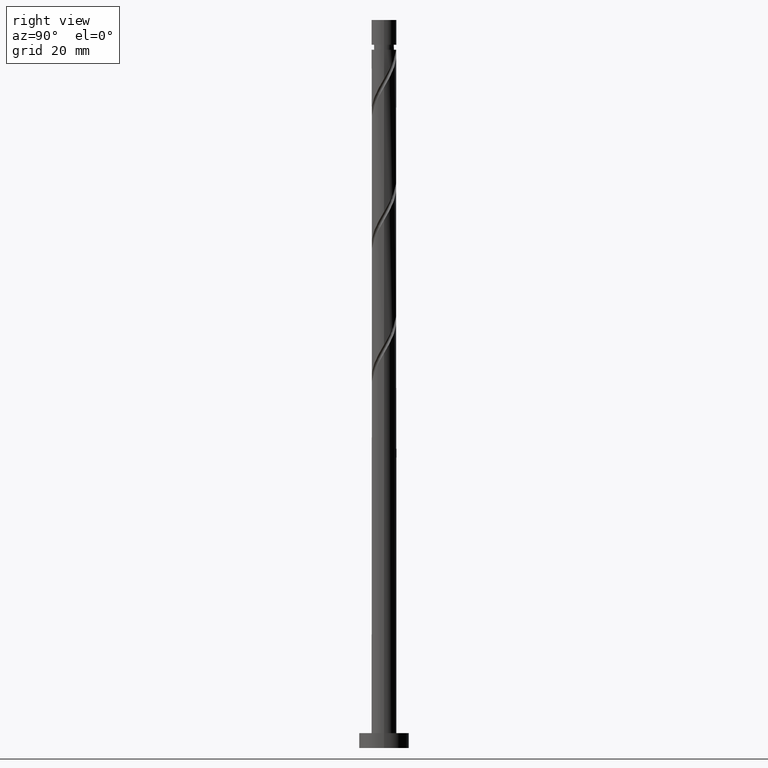
[diagram: clean part render]
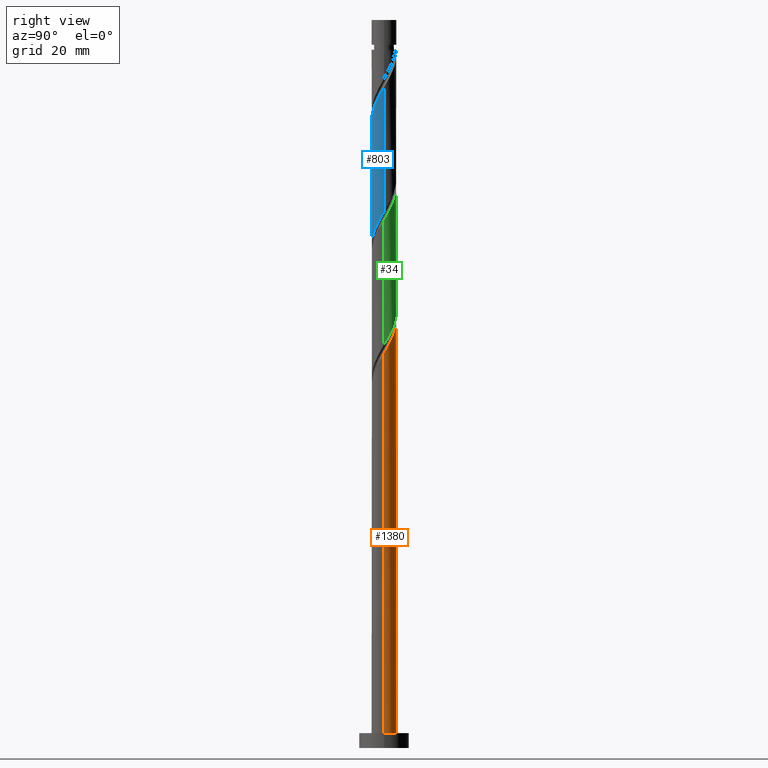
[diagram: same view with three faces highlighted in distinct colors, each labeled with its STEP entity id]
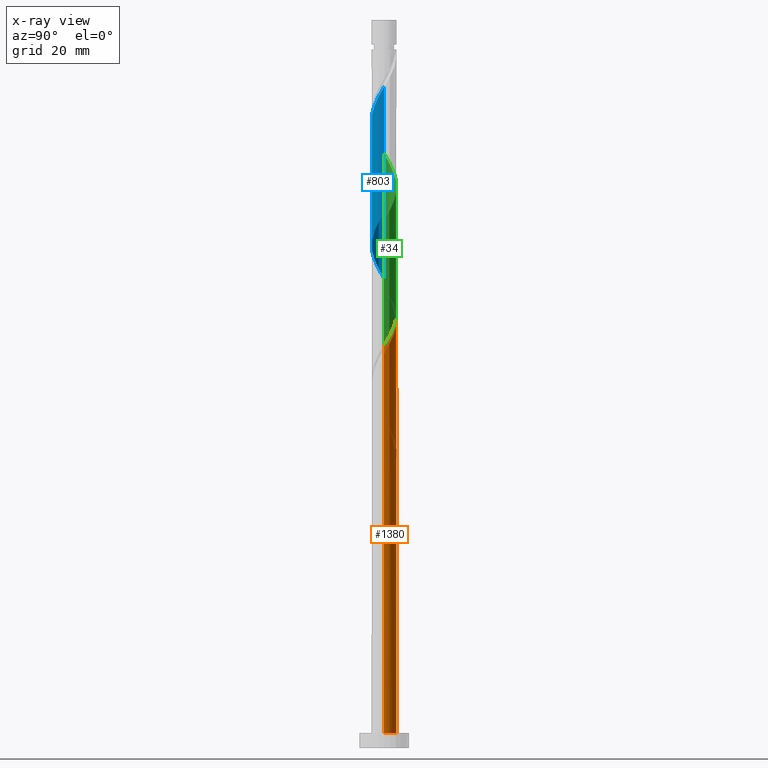
[diagram: x-ray of the same camera — body ghosted, the three highlighted faces saturated]
A machine part, right view with three faces highlighted in distinct colors.
The next image is the same camera in x-ray (body ghosted, the three faces saturated) — at least one of them is partly hidden behind the body in this view.
Their STEP definitions:

[orange] entity #1380 — the highlighted cylindrical surface (edge-blend (fillet) strip) has radius 2.5 mm, axis along (-0, -0, -1).
#2 = CARTESIAN_POINT ( 'NONE',  ( -1.485422444420511745, 2.042724014156701351, 88.50642134047635068 ) ) ;
#9 = CARTESIAN_POINT ( 'NONE',  ( -2.177375558832926217, 1.228428132125369387, 90.32460315865817790 ) ) ;
#22 = CARTESIAN_POINT ( 'NONE',  ( 2.500000000000000000, 3.061616997868383141E-16, 146.0000000000000000 ) ) ;
#29 = CARTESIAN_POINT ( 'NONE',  ( 2.354261794510398964, 0.8411013035946934835, 80.62763346168846113 ) ) ;
#45 = ORIENTED_EDGE ( 'NONE', *, *, #764, .F. ) ;
#47 = VERTEX_POINT ( 'NONE', #54 ) ;
#54 = CARTESIAN_POINT ( 'NONE',  ( -2.500000000000003109, -1.847167356881797397E-15, 92.50545170966032060 ) ) ;
#55 =( BOUNDED_CURVE ( )  B_SPLINE_CURVE ( 2, ( #1454, #302, #308, #806, #1319, #172, #1197, #1072, #1327, #180, #566 ),
 .UNSPECIFIED., .F., .T. ) 
 B_SPLINE_CURVE_WITH_KNOTS ( ( 3, 2, 2, 2, 2, 3 ),
 ( 0.000000000000000000, 0.01136363636363635354, 0.02272727272727270709, 0.03409090909090906063, 0.04545454545454541417, 0.05452521624175106496 ),
 .UNSPECIFIED. ) 
 CURVE ( )  GEOMETRIC_REPRESENTATION_ITEM ( )  RATIONAL_B_SPLINE_CURVE ( ( 0.9090909090909247148, 0.8998376744372269531, 0.9090909090909247148, 0.8998376744372269531, 0.9090909090909247148, 0.8998376744372269531, 0.9090909090909247148, 0.8998376744372269531, 0.9090909090909247148, 0.9017048011080046610, 0.9061101570135647876 ) ) 
 REPRESENTATION_ITEM ( '' )  );
#93 = VERTEX_POINT ( 'NONE', #1453 ) ;
#116 = CARTESIAN_POINT ( 'NONE',  ( -0.1452368982656253582, 2.521528798126814408, 86.08217891623395701 ) ) ;
#118 = CARTESIAN_POINT ( 'NONE',  ( -0.9060516544719204868, 2.330036566114082053, 62.44581527987031677 ) ) ;
#134 = CARTESIAN_POINT ( 'NONE',  ( -2.353996859965342914, 0.9153687888900193803, 90.93066376471880119 ) ) ;
#145 = CARTESIAN_POINT ( 'NONE',  ( -2.500000000000003553, 5.122711090947495874E-15, 65.83878504299364920 ) ) ;
#149 = VERTEX_POINT ( 'NONE', #578 ) ;
#152 = VECTOR ( 'NONE', #1575, 1000.000000000000000 ) ;
#153 = DIRECTION ( 'NONE',  ( 0.000000000000000000, 1.000000000000000000, -8.326672684688674053E-15 ) ) ;
#154 = CARTESIAN_POINT ( 'NONE',  ( -2.435264748179753358, 0.5652305779706360278, 91.53672437077941026 ) ) ;
#171 = VERTEX_POINT ( 'NONE', #729 ) ;
#172 = CARTESIAN_POINT ( 'NONE',  ( -2.000754257700509076, 1.541487475360719062, 63.05187588593093295 ) ) ;
#180 = CARTESIAN_POINT ( 'NONE',  ( -2.500000000000002220, 0.2863223184628149176, 65.35282509002233553 ) ) ;
#197 = CIRCLE ( 'NONE', #1378, 2.500000000000000000 ) ;
#200 = AXIS2_PLACEMENT_3D ( 'NONE', #1018, #1412, #1048 ) ;
#204 =( BOUNDED_CURVE ( )  B_SPLINE_CURVE ( 2, ( #1635, #454, #1476, #1487, #1355, #214, #1148, #1137, #893, #914, #118, #883, #621, #904, #271 ),
 .UNSPECIFIED., .F., .T. ) 
 B_SPLINE_CURVE_WITH_KNOTS ( ( 3, 2, 2, 2, 2, 2, 2, 3 ),
 ( 0.9295252162417512176, 0.9318181818181817677, 0.9431818181818182323, 0.9545454545454545858, 0.9659090909090909394, 0.9772727272727272929, 0.9886363636363636465, 1.000000000000000000 ),
 .UNSPECIFIED. ) 
 CURVE ( )  GEOMETRIC_REPRESENTATION_ITEM ( )  RATIONAL_B_SPLINE_CURVE ( ( 0.9061101570135593475, 0.9072237824201414558, 0.9090909090909189416, 0.8998376744372214020, 0.9090909090909189416, 0.8998376744372214020, 0.9090909090909189416, 0.8998376744372214020, 0.9090909090909189416, 0.8998376744372214020, 0.9090909090909189416, 0.8998376744372214020, 0.9090909090909189416, 0.8998376744372214020, 0.9090909090909189416 ) ) 
 REPRESENTATION_ITEM ( '' )  );
#214 = CARTESIAN_POINT ( 'NONE',  ( -2.233329684002603344, 1.179593048026943203, 65.47611831017333373 ) ) ;
#238 = CARTESIAN_POINT ( 'NONE',  ( 2.500000000000003109, 1.720034380902078682E-15, 79.17211837632699201 ) ) ;
#271 = CARTESIAN_POINT ( 'NONE',  ( 0.4974937185533112594, 2.450000000000000622, 60.02157285562788047 ) ) ;
#285 = VECTOR ( 'NONE', #1125, 1000.000000000000000 ) ;
#289 = LINE ( 'NONE', #22, #1662 ) ;
#302 = CARTESIAN_POINT ( 'NONE',  ( -0.8497505388409963833, 2.378471201873193497, 60.62763346168849665 ) ) ;
#308 = CARTESIAN_POINT ( 'NONE',  ( -1.167586491630753676, 2.210597608014947202, 61.23369406774909862 ) ) ;
#310 = ORIENTED_EDGE ( 'NONE', *, *, #812, .T. ) ;
#364 = VERTEX_POINT ( 'NONE', #238 ) ;
#403 = CARTESIAN_POINT ( 'NONE',  ( 1.241060336893710536, 2.199766004962788735, 83.65793649199150650 ) ) ;
#421 = EDGE_CURVE ( 'NONE', #929, #171, #204, .T. ) ;
#441 = VERTEX_POINT ( 'NONE', #145 ) ;
#446 = ORIENTED_EDGE ( 'NONE', *, *, #920, .F. ) ;
#454 = CARTESIAN_POINT ( 'NONE',  ( -2.500000000000001332, 0.07193881630955417661, 67.41559599687724358 ) ) ;
#473 = CARTESIAN_POINT ( 'NONE',  ( -2.500000000000000000, 0.000000000000000000, 146.0000000000000000 ) ) ;
#498 = CARTESIAN_POINT ( 'NONE',  ( 2.021932029057392999, 1.470302985738609403, 81.83975467380970770 ) ) ;
#516 = CARTESIAN_POINT ( 'NONE',  ( 0.5710429720501333239, 2.460307127265380256, 84.87005770411276728 ) ) ;
#526 = CARTESIAN_POINT ( 'NONE',  ( -1.743088351060509744, 1.792105744758709873, 89.11248194653697396 ) ) ;
#536 = CARTESIAN_POINT ( 'NONE',  ( 2.500000000000003553, 0.07193881630955606399, 79.29421638104520298 ) ) ;
#553 = CIRCLE ( 'NONE', #1488, 2.500000000000000000 ) ;
#557 = CARTESIAN_POINT ( 'NONE',  ( 0.000000000000000000, 0.000000000000000000, 3.000000000000000000 ) ) ;
#566 = CARTESIAN_POINT ( 'NONE',  ( -2.500000000000003553, 5.122711090947495874E-15, 65.83878504299364920 ) ) ;
#578 = CARTESIAN_POINT ( 'NONE',  ( -2.500000000000000000, 0.000000000000000000, 3.000000000000000000 ) ) ;
#584 = ORIENTED_EDGE ( 'NONE', *, *, #1274, .F. ) ;
#621 = CARTESIAN_POINT ( 'NONE',  ( -0.2129030368922530114, 2.490917962696094445, 61.23369406774913415 ) ) ;
#627 = CARTESIAN_POINT ( 'NONE',  ( 2.233329684002606896, 1.179593048026943425, 81.23369406774911283 ) ) ;
#645 = CARTESIAN_POINT ( 'NONE',  ( 2.475193905018191920, 0.5026095591624443193, 80.02157285562788047 ) ) ;
#650 = ORIENTED_EDGE ( 'NONE', *, *, #421, .F. ) ;
#652 = FACE_OUTER_BOUND ( 'NONE', #1436, .T. ) ;
#661 = CARTESIAN_POINT ( 'NONE',  ( -1.167586491630753676, 2.210597608014947202, 87.90036073441577003 ) ) ;
#681 = DIRECTION ( 'NONE',  ( 0.000000000000000000, 0.000000000000000000, 1.000000000000000000 ) ) ;
#729 = CARTESIAN_POINT ( 'NONE',  ( 0.4974937185533112594, 2.450000000000000622, 60.02157285562788047 ) ) ;
#764 = EDGE_CURVE ( 'NONE', #441, #149, #1382, .T. ) ;
#774 = CARTESIAN_POINT ( 'NONE',  ( -2.000754257700509076, 1.541487475360719062, 89.71854255259758304 ) ) ;
#785 = CARTESIAN_POINT ( 'NONE',  ( 0.2129030368922538996, 2.490917962696097110, 85.47611831017334794 ) ) ;
#806 = CARTESIAN_POINT ( 'NONE',  ( -1.485422444420511745, 2.042724014156701351, 61.83975467380970770 ) ) ;
#812 = EDGE_CURVE ( 'NONE', #93, #171, #553, .T. ) ;
#851 = ORIENTED_EDGE ( 'NONE', *, *, #1485, .T. ) ;
#883 = CARTESIAN_POINT ( 'NONE',  ( -0.5710429720501317696, 2.460307127265377591, 61.83975467380970770 ) ) ;
#893 = CARTESIAN_POINT ( 'NONE',  ( -1.525797355502942931, 1.980389464206530281, 63.65793649199151361 ) ) ;
#904 = CARTESIAN_POINT ( 'NONE',  ( 0.1452368982656258856, 2.521528798126810855, 60.62763346168850376 ) ) ;
#912 = CARTESIAN_POINT ( 'NONE',  ( -2.500000000000003997, 0.2863223184628085893, 92.01949175668903536 ) ) ;
#914 = CARTESIAN_POINT ( 'NONE',  ( -1.241060336893709870, 2.199766004962786070, 63.05187588593091874 ) ) ;
#920 = EDGE_CURVE ( 'NONE', #47, #929, #1058, .T. ) ;
#929 = VERTEX_POINT ( 'NONE', #1047 ) ;
#1018 = CARTESIAN_POINT ( 'NONE',  ( 0.000000000000000000, 0.000000000000000000, 146.0000000000000000 ) ) ;
#1028 = CARTESIAN_POINT ( 'NONE',  ( 0.000000000000000000, 0.000000000000000000, 60.02157285562789468 ) ) ;
#1047 = CARTESIAN_POINT ( 'NONE',  ( -2.500000000000000888, 2.512745878187399992E-15, 67.53769400159545455 ) ) ;
#1048 = DIRECTION ( 'NONE',  ( -1.000000000000000000, 0.000000000000000000, 0.000000000000000000 ) ) ;
#1058 = LINE ( 'NONE', #1164, #152 ) ;
#1061 =( BOUNDED_CURVE ( )  B_SPLINE_CURVE ( 2, ( #1559, #536, #1165, #645, #29, #627, #498, #1283, #1547, #403, #1276, #516, #785, #116, #1146, #1420, #661, #2, #526, #774, #9, #134, #154, #912, #1271 ),
 .UNSPECIFIED., .F., .T. ) 
 B_SPLINE_CURVE_WITH_KNOTS ( ( 3, 2, 2, 2, 2, 2, 2, 2, 2, 2, 2, 2, 3 ),
 ( 0.1795252162417513009, 0.1818181818181817677, 0.1931818181818182323, 0.2045454545454545858, 0.2159090909090909394, 0.2272727272727272929, 0.2386363636363636465, 0.2500000000000000000, 0.2613636363636363535, 0.2727272727272727071, 0.2840909090909090606, 0.2954545454545454142, 0.3045252162417512731 ),
 .UNSPECIFIED. ) 
 CURVE ( )  GEOMETRIC_REPRESENTATION_ITEM ( )  RATIONAL_B_SPLINE_CURVE ( ( 0.9061101570135650096, 0.9072237824201472289, 0.9090909090909247148, 0.8998376744372269531, 0.9090909090909247148, 0.8998376744372269531, 0.9090909090909247148, 0.8998376744372269531, 0.9090909090909247148, 0.8998376744372269531, 0.9090909090909247148, 0.8998376744372269531, 0.9090909090909247148, 0.8998376744372269531, 0.9090909090909247148, 0.8998376744372269531, 0.9090909090909247148, 0.8998376744372269531, 0.9090909090909247148, 0.8998376744372269531, 0.9090909090909247148, 0.8998376744372269531, 0.9090909090909247148, 0.9017048011080044390, 0.9061101570135650096 ) ) 
 REPRESENTATION_ITEM ( '' )  );
#1063 = DIRECTION ( 'NONE',  ( 1.000000000000000000, 0.000000000000000000, 0.000000000000000000 ) ) ;
#1065 = EDGE_CURVE ( 'NONE', #364, #1194, #289, .T. ) ;
#1072 = CARTESIAN_POINT ( 'NONE',  ( -2.353996859965342914, 0.9153687888900193803, 64.26399709805212979 ) ) ;
#1110 = ORIENTED_EDGE ( 'NONE', *, *, #1324, .F. ) ;
#1125 = DIRECTION ( 'NONE',  ( -0.000000000000000000, -0.000000000000000000, -1.000000000000000000 ) ) ;
#1137 = CARTESIAN_POINT ( 'NONE',  ( -1.810534374112176659, 1.761012923450275602, 64.26399709805212979 ) ) ;
#1146 = CARTESIAN_POINT ( 'NONE',  ( -0.4974937185533102046, 2.450000000000003286, 86.68823952229452345 ) ) ;
#1148 = CARTESIAN_POINT ( 'NONE',  ( -2.021932029057390334, 1.470302985738609181, 64.87005770411273886 ) ) ;
#1164 = CARTESIAN_POINT ( 'NONE',  ( -2.500000000000000000, 0.000000000000000000, 146.0000000000000000 ) ) ;
#1165 = CARTESIAN_POINT ( 'NONE',  ( 2.495863270706177417, 0.1437585960555957942, 79.41551224956725719 ) ) ;
#1184 = ORIENTED_EDGE ( 'NONE', *, *, #1065, .T. ) ;
#1194 = VERTEX_POINT ( 'NONE', #1220 ) ;
#1197 = CARTESIAN_POINT ( 'NONE',  ( -2.177375558832926217, 1.228428132125369387, 63.65793649199151361 ) ) ;
#1220 = CARTESIAN_POINT ( 'NONE',  ( 2.500000000000000000, 3.061616997868383141E-16, 3.000000000000000000 ) ) ;
#1271 = CARTESIAN_POINT ( 'NONE',  ( -2.500000000000003109, -1.847167356881797397E-15, 92.50545170966032060 ) ) ;
#1274 = EDGE_CURVE ( 'NONE', #93, #441, #55, .T. ) ;
#1276 = CARTESIAN_POINT ( 'NONE',  ( 0.9060516544719214860, 2.330036566114083829, 84.26399709805211558 ) ) ;
#1283 = CARTESIAN_POINT ( 'NONE',  ( 1.810534374112180878, 1.761012923450276269, 82.44581527987030256 ) ) ;
#1292 = DIRECTION ( 'NONE',  ( -4.622231866529366047E-30, -6.938893903907233111E-15, -1.000000000000000000 ) ) ;
#1319 = CARTESIAN_POINT ( 'NONE',  ( -1.743088351060509744, 1.792105744758709873, 62.44581527987028835 ) ) ;
#1324 = EDGE_CURVE ( 'NONE', #364, #47, #1061, .T. ) ;
#1327 = CARTESIAN_POINT ( 'NONE',  ( -2.435264748179753358, 0.5652305779706360278, 64.87005770411272465 ) ) ;
#1355 = CARTESIAN_POINT ( 'NONE',  ( -2.354261794510395855, 0.8411013035946934835, 66.08217891623395701 ) ) ;
#1378 = AXIS2_PLACEMENT_3D ( 'NONE', #557, #681, #1063 ) ;
#1380 = ADVANCED_FACE ( 'NONE', ( #652 ), #1531, .T. ) ;
#1382 = LINE ( 'NONE', #473, #285 ) ;
#1412 = DIRECTION ( 'NONE',  ( -0.000000000000000000, -0.000000000000000000, -1.000000000000000000 ) ) ;
#1420 = CARTESIAN_POINT ( 'NONE',  ( -0.8497505388409963833, 2.378471201873193497, 87.29430012835516095 ) ) ;
#1436 = EDGE_LOOP ( 'NONE', ( #1110, #1184, #851, #45, #584, #310, #650, #446 ) ) ;
#1453 = CARTESIAN_POINT ( 'NONE',  ( -0.4974937185533102602, 2.450000000000003286, 60.02157285562788047 ) ) ;
#1454 = CARTESIAN_POINT ( 'NONE',  ( -0.4974937185533102046, 2.450000000000003286, 60.02157285562788047 ) ) ;
#1476 = CARTESIAN_POINT ( 'NONE',  ( -2.495863270706176085, 0.1437585960555965436, 67.29430012835517516 ) ) ;
#1485 = EDGE_CURVE ( 'NONE', #1194, #149, #197, .T. ) ;
#1487 = CARTESIAN_POINT ( 'NONE',  ( -2.475193905018188367, 0.5026095591624445413, 66.68823952229455188 ) ) ;
#1488 = AXIS2_PLACEMENT_3D ( 'NONE', #1028, #1292, #153 ) ;
#1531 = CYLINDRICAL_SURFACE ( 'NONE', #200, 2.500000000000000000 ) ;
#1547 = CARTESIAN_POINT ( 'NONE',  ( 1.525797355502944708, 1.980389464206532946, 83.05187588593088321 ) ) ;
#1559 = CARTESIAN_POINT ( 'NONE',  ( 2.500000000000003109, 1.720034380902078682E-15, 79.17211837632699201 ) ) ;
#1570 = DIRECTION ( 'NONE',  ( -0.000000000000000000, -0.000000000000000000, -1.000000000000000000 ) ) ;
#1575 = DIRECTION ( 'NONE',  ( -0.000000000000000000, -0.000000000000000000, -1.000000000000000000 ) ) ;
#1635 = CARTESIAN_POINT ( 'NONE',  ( -2.500000000000000888, 2.512745878187399992E-15, 67.53769400159545455 ) ) ;
#1662 = VECTOR ( 'NONE', #1570, 1000.000000000000000 ) ;

[blue] entity #803 — the highlighted cylindrical surface (edge-blend (fillet) strip) has radius 2.5 mm, axis along (-0, -0, -1).
#4 = CARTESIAN_POINT ( 'NONE',  ( 2.500000000000000000, 3.061616997868383141E-16, 146.0000000000000000 ) ) ;
#69 = CARTESIAN_POINT ( 'NONE',  ( -0.5710429720501331019, -2.460307127265380256, 124.8700577041127247 ) ) ;
#95 = CARTESIAN_POINT ( 'NONE',  ( -2.354261794510398964, -0.8411013035946938166, 120.6276334616884753 ) ) ;
#101 = VECTOR ( 'NONE', #507, 1000.000000000000000 ) ;
#105 = CARTESIAN_POINT ( 'NONE',  ( -1.743088351060509078, -1.792105744758706987, 97.59733043138548680 ) ) ;
#130 = ORIENTED_EDGE ( 'NONE', *, *, #547, .T. ) ;
#142 = CARTESIAN_POINT ( 'NONE',  ( -2.500000000000003109, -1.847167356881797397E-15, 119.1721183763269778 ) ) ;
#160 = CARTESIAN_POINT ( 'NONE',  ( 0.000000000000000000, 0.000000000000000000, 146.0000000000000000 ) ) ;
#168 = EDGE_CURVE ( 'NONE', #1326, #1614, #665, .T. ) ;
#219 = CARTESIAN_POINT ( 'NONE',  ( -1.241060336893712091, -2.199766004962788735, 123.6579364919915207 ) ) ;
#221 = CARTESIAN_POINT ( 'NONE',  ( -2.435264748179752026, -0.5652305779706344735, 95.17308800714305050 ) ) ;
#228 = CARTESIAN_POINT ( 'NONE',  ( -2.021932029057392555, -1.470302985738610513, 121.8397546738096651 ) ) ;
#278 = FACE_OUTER_BOUND ( 'NONE', #747, .T. ) ;
#281 = CARTESIAN_POINT ( 'NONE',  ( 2.500000000000000888, -2.991364140699285949E-15, 107.5376940015954546 ) ) ;
#329 = CARTESIAN_POINT ( 'NONE',  ( 2.500000000000000888, -2.991364140699285554E-15, 107.5376940015954546 ) ) ;
#339 = CARTESIAN_POINT ( 'NONE',  ( -2.233329684002606452, -1.179593048026943869, 121.2336940677490844 ) ) ;
#340 = DIRECTION ( 'NONE',  ( -0.000000000000000000, -0.000000000000000000, -1.000000000000000000 ) ) ;
#341 = CARTESIAN_POINT ( 'NONE',  ( 2.354261794510395855, -0.8411013035946937055, 106.0821789162339712 ) ) ;
#347 = CARTESIAN_POINT ( 'NONE',  ( -2.500000000000003109, -1.847167356881797397E-15, 119.1721183763269920 ) ) ;
#350 = CARTESIAN_POINT ( 'NONE',  ( 2.500000000000003109, 1.720034380902078682E-15, 132.5054517096603206 ) ) ;
#356 = CARTESIAN_POINT ( 'NONE',  ( 2.500000000000001776, -0.2863223184628163054, 132.0194917566890354 ) ) ;
#366 = CARTESIAN_POINT ( 'NONE',  ( 1.525797355502942709, -1.980389464206530281, 103.6579364919915207 ) ) ;
#398 = ORIENTED_EDGE ( 'NONE', *, *, #478, .F. ) ;
#471 = CARTESIAN_POINT ( 'NONE',  ( -1.810534374112179767, -1.761012923450277379, 122.4458152798702884 ) ) ;
#478 = EDGE_CURVE ( 'NONE', #1614, #1059, #519, .T. ) ;
#482 = CARTESIAN_POINT ( 'NONE',  ( 2.435264748179753358, -0.5652305779706359168, 131.5367243707793818 ) ) ;
#497 = CARTESIAN_POINT ( 'NONE',  ( 0.5710429720501322137, -2.460307127265377591, 101.8397546738097077 ) ) ;
#504 = CARTESIAN_POINT ( 'NONE',  ( -0.8497505388409951621, -2.378471201873189944, 99.41551224956727140 ) ) ;
#507 = DIRECTION ( 'NONE',  ( -0.000000000000000000, -0.000000000000000000, -1.000000000000000000 ) ) ;
#515 = DIRECTION ( 'NONE',  ( -0.000000000000000000, -0.000000000000000000, -1.000000000000000000 ) ) ;
#519 = LINE ( 'NONE', #4, #101 ) ;
#547 = EDGE_CURVE ( 'NONE', #1326, #1209, #731, .T. ) ;
#569 = CARTESIAN_POINT ( 'NONE',  ( 2.500000000000003109, 1.720034380902078682E-15, 132.5054517096603206 ) ) ;
#588 = CARTESIAN_POINT ( 'NONE',  ( 2.353996859965342914, -0.9153687888900188252, 130.9306637647187870 ) ) ;
#597 = CARTESIAN_POINT ( 'NONE',  ( 0.8497505388409957172, -2.378471201873193941, 127.2943001283551610 ) ) ;
#606 = CARTESIAN_POINT ( 'NONE',  ( -1.525797355502945374, -1.980389464206532946, 123.0518758859308974 ) ) ;
#660 = DIRECTION ( 'NONE',  ( -1.000000000000000000, 0.000000000000000000, 0.000000000000000000 ) ) ;
#665 =( BOUNDED_CURVE ( )  B_SPLINE_CURVE ( 2, ( #347, #1379, #1236, #1210, #95, #339, #228, #471, #606, #219, #1639, #69, #981, #852, #735, #597, #1509, #1218, #971, #1628, #1228, #588, #482, #356, #569 ),
 .UNSPECIFIED., .F., .T. ) 
 B_SPLINE_CURVE_WITH_KNOTS ( ( 3, 2, 2, 2, 2, 2, 2, 2, 2, 2, 2, 2, 3 ),
 ( 0.5545252162417513286, 0.5568181818181818787, 0.5681818181818181213, 0.5795454545454545858, 0.5909090909090908283, 0.6022727272727272929, 0.6136363636363636465, 0.6250000000000000000, 0.6363636363636363535, 0.6477272727272727071, 0.6590909090909091717, 0.6704545454545454142, 0.6795252162417511066 ),
 .UNSPECIFIED. ) 
 CURVE ( )  GEOMETRIC_REPRESENTATION_ITEM ( )  RATIONAL_B_SPLINE_CURVE ( ( 0.9061101570135650096, 0.9072237824201471179, 0.9090909090909247148, 0.8998376744372269531, 0.9090909090909247148, 0.8998376744372269531, 0.9090909090909247148, 0.8998376744372269531, 0.9090909090909247148, 0.8998376744372269531, 0.9090909090909247148, 0.8998376744372269531, 0.9090909090909247148, 0.8998376744372269531, 0.9090909090909247148, 0.8998376744372269531, 0.9090909090909247148, 0.8998376744372269531, 0.9090909090909247148, 0.8998376744372269531, 0.9090909090909247148, 0.8998376744372269531, 0.9090909090909247148, 0.9017048011080046610, 0.9061101570135647876 ) ) 
 REPRESENTATION_ITEM ( '' )  );
#673 = ORIENTED_EDGE ( 'NONE', *, *, #677, .F. ) ;
#677 = EDGE_CURVE ( 'NONE', #1059, #1209, #1525, .T. ) ;
#731 = LINE ( 'NONE', #1102, #1376 ) ;
#735 = CARTESIAN_POINT ( 'NONE',  ( 0.4974937185533105932, -2.450000000000003286, 126.6882395222945235 ) ) ;
#738 = CARTESIAN_POINT ( 'NONE',  ( 1.810534374112177769, -1.761012923450275158, 104.2639970980521156 ) ) ;
#744 = CARTESIAN_POINT ( 'NONE',  ( -2.500000000000000888, -0.2863223184628057028, 94.69032062123341120 ) ) ;
#747 = EDGE_LOOP ( 'NONE', ( #398, #1408, #130, #673 ) ) ;
#784 = CYLINDRICAL_SURFACE ( 'NONE', #1267, 2.500000000000000000 ) ;
#803 = ADVANCED_FACE ( 'NONE', ( #278 ), #784, .T. ) ;
#852 = CARTESIAN_POINT ( 'NONE',  ( 0.1452368982656256635, -2.521528798126814408, 126.0821789162339428 ) ) ;
#854 = CARTESIAN_POINT ( 'NONE',  ( 1.241060336893708982, -2.199766004962786070, 103.0518758859309258 ) ) ;
#862 = CARTESIAN_POINT ( 'NONE',  ( -2.177375558832923996, -1.228428132125367167, 96.38520921926422602 ) ) ;
#880 = CARTESIAN_POINT ( 'NONE',  ( -2.000754257700506855, -1.541487475360715953, 96.99126982532484931 ) ) ;
#890 = CARTESIAN_POINT ( 'NONE',  ( 2.233329684002603344, -1.179593048026942981, 105.4761183101733479 ) ) ;
#971 = CARTESIAN_POINT ( 'NONE',  ( 1.743088351060509744, -1.792105744758709873, 129.1124819465369455 ) ) ;
#981 = CARTESIAN_POINT ( 'NONE',  ( -0.2129030368922535943, -2.490917962696097110, 125.4761183101733053 ) ) ;
#1000 = CARTESIAN_POINT ( 'NONE',  ( -1.485422444420510191, -2.042724014156698686, 98.20339103744608167 ) ) ;
#1005 = CARTESIAN_POINT ( 'NONE',  ( -2.353996859965340249, -0.9153687888900176040, 95.77914861320364537 ) ) ;
#1059 = VERTEX_POINT ( 'NONE', #281 ) ;
#1102 = CARTESIAN_POINT ( 'NONE',  ( -2.500000000000000000, 0.000000000000000000, 146.0000000000000000 ) ) ;
#1209 = VERTEX_POINT ( 'NONE', #1229 ) ;
#1210 = CARTESIAN_POINT ( 'NONE',  ( -2.475193905018191920, -0.5026095591624446524, 120.0215728556278663 ) ) ;
#1218 = CARTESIAN_POINT ( 'NONE',  ( 1.485422444420511967, -2.042724014156701351, 128.5064213404763507 ) ) ;
#1228 = CARTESIAN_POINT ( 'NONE',  ( 2.177375558832926217, -1.228428132125369387, 130.3246031586581921 ) ) ;
#1229 = CARTESIAN_POINT ( 'NONE',  ( -2.500000000000000888, 2.512745878187399992E-15, 94.20436066826212596 ) ) ;
#1236 = CARTESIAN_POINT ( 'NONE',  ( -2.495863270706177417, -0.1437585960555960440, 119.4155122495672430 ) ) ;
#1248 = CARTESIAN_POINT ( 'NONE',  ( 0.2129030368922523175, -2.490917962696094445, 101.2336940677491128 ) ) ;
#1262 = CARTESIAN_POINT ( 'NONE',  ( -2.500000000000000888, 2.512745878187399992E-15, 94.20436066826212596 ) ) ;
#1267 = AXIS2_PLACEMENT_3D ( 'NONE', #160, #515, #660 ) ;
#1326 = VERTEX_POINT ( 'NONE', #142 ) ;
#1362 = CARTESIAN_POINT ( 'NONE',  ( -1.167586491630752787, -2.210597608014944537, 98.80945164350669074 ) ) ;
#1370 = CARTESIAN_POINT ( 'NONE',  ( -0.4974937185533109818, -2.450000000000000622, 100.0215728556278805 ) ) ;
#1376 = VECTOR ( 'NONE', #340, 1000.000000000000000 ) ;
#1379 = CARTESIAN_POINT ( 'NONE',  ( -2.500000000000003997, -0.07193881630955435702, 119.2942163810452030 ) ) ;
#1400 = CARTESIAN_POINT ( 'NONE',  ( 0.9060516544719204868, -2.330036566114082053, 102.4458152798703594 ) ) ;
#1408 = ORIENTED_EDGE ( 'NONE', *, *, #168, .F. ) ;
#1496 = CARTESIAN_POINT ( 'NONE',  ( -0.1452368982656264962, -2.521528798126811299, 100.6276334616885038 ) ) ;
#1509 = CARTESIAN_POINT ( 'NONE',  ( 1.167586491630753232, -2.210597608014947202, 127.9003607344157700 ) ) ;
#1520 = CARTESIAN_POINT ( 'NONE',  ( 2.475193905018188367, -0.5026095591624448744, 106.6882395222945661 ) ) ;
#1525 =( BOUNDED_CURVE ( )  B_SPLINE_CURVE ( 2, ( #329, #1530, #1648, #1520, #341, #890, #1654, #738, #366, #854, #1400, #497, #1248, #1496, #1370, #504, #1362, #1000, #105, #880, #862, #1005, #221, #744, #1262 ),
 .UNSPECIFIED., .F., .T. ) 
 B_SPLINE_CURVE_WITH_KNOTS ( ( 3, 2, 2, 2, 2, 2, 2, 2, 2, 2, 2, 2, 3 ),
 ( 0.5545252162417513286, 0.5568181818181817677, 0.5681818181818182323, 0.5795454545454545858, 0.5909090909090909394, 0.6022727272727272929, 0.6136363636363636465, 0.6250000000000000000, 0.6363636363636363535, 0.6477272727272727071, 0.6590909090909090606, 0.6704545454545454142, 0.6795252162417513286 ),
 .UNSPECIFIED. ) 
 CURVE ( )  GEOMETRIC_REPRESENTATION_ITEM ( )  RATIONAL_B_SPLINE_CURVE ( ( 0.9061101570135594585, 0.9072237824201414558, 0.9090909090909189416, 0.8998376744372214020, 0.9090909090909189416, 0.8998376744372214020, 0.9090909090909189416, 0.8998376744372214020, 0.9090909090909189416, 0.8998376744372214020, 0.9090909090909189416, 0.8998376744372214020, 0.9090909090909189416, 0.8998376744372214020, 0.9090909090909189416, 0.8998376744372214020, 0.9090909090909189416, 0.8998376744372214020, 0.9090909090909189416, 0.8998376744372214020, 0.9090909090909189416, 0.8998376744372214020, 0.9090909090909189416, 0.9017048011079988878, 0.9061101570135594585 ) ) 
 REPRESENTATION_ITEM ( '' )  );
#1530 = CARTESIAN_POINT ( 'NONE',  ( 2.500000000000001332, -0.07193881630955810402, 107.4155959968772436 ) ) ;
#1614 = VERTEX_POINT ( 'NONE', #350 ) ;
#1628 = CARTESIAN_POINT ( 'NONE',  ( 2.000754257700508632, -1.541487475360719062, 129.7185425525975688 ) ) ;
#1639 = CARTESIAN_POINT ( 'NONE',  ( -0.9060516544719222631, -2.330036566114083385, 124.2639970980521156 ) ) ;
#1648 = CARTESIAN_POINT ( 'NONE',  ( 2.495863270706176085, -0.1437585960555968490, 107.2943001283551752 ) ) ;
#1654 = CARTESIAN_POINT ( 'NONE',  ( 2.021932029057390334, -1.470302985738609403, 104.8700577041127389 ) ) ;

[green] entity #34 — the highlighted cylindrical surface (edge-blend (fillet) strip) has radius 2.5 mm, axis along (-0, -0, -1).
#20 = CARTESIAN_POINT ( 'NONE',  ( 2.354261794510398964, 0.8411013035946934835, 107.2943001283551183 ) ) ;
#34 = ADVANCED_FACE ( 'NONE', ( #420 ), #935, .T. ) ;
#142 = CARTESIAN_POINT ( 'NONE',  ( -2.500000000000003109, -1.847167356881797397E-15, 119.1721183763269778 ) ) ;
#173 = CARTESIAN_POINT ( 'NONE',  ( 1.743088351060508190, 1.792105744758707875, 84.26399709805214400 ) ) ;
#178 = CARTESIAN_POINT ( 'NONE',  ( -2.353996859965342914, 0.9153687888900193803, 117.5973304313854584 ) ) ;
#184 = CARTESIAN_POINT ( 'NONE',  ( -1.241060336893709870, 2.199766004962786070, 89.71854255259761146 ) ) ;
#187 = CARTESIAN_POINT ( 'NONE',  ( 2.500000000000003109, 1.720034380902078682E-15, 105.8387850429936776 ) ) ;
#190 = CARTESIAN_POINT ( 'NONE',  ( 2.000754257700505967, 1.541487475360716841, 83.65793649199153492 ) ) ;
#224 = CARTESIAN_POINT ( 'NONE',  ( 2.500000000000000888, 0.2863223184628083673, 81.35698728790008261 ) ) ;
#279 = CARTESIAN_POINT ( 'NONE',  ( 2.500000000000003109, 1.720034380902078682E-15, 105.8387850429936776 ) ) ;
#288 = VERTEX_POINT ( 'NONE', #318 ) ;
#298 = EDGE_CURVE ( 'NONE', #1209, #288, #791, .T. ) ;
#300 = CARTESIAN_POINT ( 'NONE',  ( -2.021932029057390334, 1.470302985738609181, 91.53672437077941026 ) ) ;
#318 = CARTESIAN_POINT ( 'NONE',  ( 2.500000000000000888, -2.991364140699285949E-15, 80.87102733492878315 ) ) ;
#340 = DIRECTION ( 'NONE',  ( -0.000000000000000000, -0.000000000000000000, -1.000000000000000000 ) ) ;
#367 = CARTESIAN_POINT ( 'NONE',  ( 0.5710429720501333239, 2.460307127265380256, 111.5367243707793818 ) ) ;
#384 = CARTESIAN_POINT ( 'NONE',  ( -0.4974937185533102046, 2.450000000000003286, 113.3549061889611949 ) ) ;
#420 = FACE_OUTER_BOUND ( 'NONE', #616, .T. ) ;
#425 = CARTESIAN_POINT ( 'NONE',  ( -2.233329684002603344, 1.179593048026943203, 92.14278497684003355 ) ) ;
#463 = CARTESIAN_POINT ( 'NONE',  ( 2.353996859965340693, 0.9153687888900163827, 82.44581527987028835 ) ) ;
#511 = ORIENTED_EDGE ( 'NONE', *, *, #988, .T. ) ;
#544 = CARTESIAN_POINT ( 'NONE',  ( -2.000754257700509076, 1.541487475360719062, 116.3852092192642402 ) ) ;
#547 = EDGE_CURVE ( 'NONE', #1326, #1209, #731, .T. ) ;
#560 = CARTESIAN_POINT ( 'NONE',  ( -1.743088351060509744, 1.792105744758709873, 115.7791486132036454 ) ) ;
#572 = CARTESIAN_POINT ( 'NONE',  ( 0.4974937185533113704, 2.450000000000000622, 86.68823952229458030 ) ) ;
#576 = VERTEX_POINT ( 'NONE', #187 ) ;
#616 = EDGE_LOOP ( 'NONE', ( #1189, #511, #1071, #805 ) ) ;
#637 = CARTESIAN_POINT ( 'NONE',  ( 1.810534374112180878, 1.761012923450276269, 109.1124819465369598 ) ) ;
#672 = CARTESIAN_POINT ( 'NONE',  ( -2.435264748179753358, 0.5652305779706360278, 118.2033910374460675 ) ) ;
#700 = CARTESIAN_POINT ( 'NONE',  ( -1.485422444420511745, 2.042724014156701351, 115.1730880071430221 ) ) ;
#731 = LINE ( 'NONE', #1102, #1376 ) ;
#757 = CARTESIAN_POINT ( 'NONE',  ( 2.495863270706177417, 0.1437585960555957942, 106.0821789162339428 ) ) ;
#791 =( BOUNDED_CURVE ( )  B_SPLINE_CURVE ( 2, ( #830, #1618, #842, #1004, #1598, #425, #300, #1459, #819, #184, #954, #1463, #1456, #796, #572, #1588, #1199, #944, #173, #190, #1622, #463, #1001, #224, #1384 ),
 .UNSPECIFIED., .F., .T. ) 
 B_SPLINE_CURVE_WITH_KNOTS ( ( 3, 2, 2, 2, 2, 2, 2, 2, 2, 2, 2, 2, 3 ),
 ( 0.6795252162417513286, 0.6818181818181817677, 0.6931818181818182323, 0.7045454545454545858, 0.7159090909090909394, 0.7272727272727272929, 0.7386363636363636465, 0.7500000000000000000, 0.7613636363636363535, 0.7727272727272727071, 0.7840909090909090606, 0.7954545454545454142, 0.8045252162417512176 ),
 .UNSPECIFIED. ) 
 CURVE ( )  GEOMETRIC_REPRESENTATION_ITEM ( )  RATIONAL_B_SPLINE_CURVE ( ( 0.9061101570135594585, 0.9072237824201414558, 0.9090909090909189416, 0.8998376744372214020, 0.9090909090909189416, 0.8998376744372214020, 0.9090909090909189416, 0.8998376744372214020, 0.9090909090909189416, 0.8998376744372214020, 0.9090909090909189416, 0.8998376744372214020, 0.9090909090909189416, 0.8998376744372214020, 0.9090909090909189416, 0.8998376744372214020, 0.9090909090909189416, 0.8998376744372214020, 0.9090909090909189416, 0.8998376744372214020, 0.9090909090909189416, 0.8998376744372214020, 0.9090909090909189416, 0.9017048011079989989, 0.9061101570135593475 ) ) 
 REPRESENTATION_ITEM ( '' )  );
#796 = CARTESIAN_POINT ( 'NONE',  ( 0.1452368982656258856, 2.521528798126810855, 87.29430012835513253 ) ) ;
#800 = DIRECTION ( 'NONE',  ( -0.000000000000000000, -0.000000000000000000, -1.000000000000000000 ) ) ;
#805 = ORIENTED_EDGE ( 'NONE', *, *, #547, .F. ) ;
#819 = CARTESIAN_POINT ( 'NONE',  ( -1.525797355502942931, 1.980389464206530281, 90.32460315865822054 ) ) ;
#830 = CARTESIAN_POINT ( 'NONE',  ( -2.500000000000000888, 2.512745878187399992E-15, 94.20436066826212596 ) ) ;
#842 = CARTESIAN_POINT ( 'NONE',  ( -2.495863270706176085, 0.1437585960555965436, 93.96096679502186078 ) ) ;
#881 = CARTESIAN_POINT ( 'NONE',  ( 0.2129030368922538996, 2.490917962696097110, 112.1427849768399909 ) ) ;
#891 = CARTESIAN_POINT ( 'NONE',  ( -0.1452368982656253582, 2.521528798126814408, 112.7488455829005858 ) ) ;
#907 =( BOUNDED_CURVE ( )  B_SPLINE_CURVE ( 2, ( #279, #1156, #757, #1293, #20, #1175, #1007, #637, #1521, #1029, #1036, #367, #881, #891, #384, #1390, #1401, #700, #560, #544, #1070, #178, #672, #1601, #1183 ),
 .UNSPECIFIED., .F., .T. ) 
 B_SPLINE_CURVE_WITH_KNOTS ( ( 3, 2, 2, 2, 2, 2, 2, 2, 2, 2, 2, 2, 3 ),
 ( 0.4295252162417511621, 0.4318181818181817677, 0.4431818181818182323, 0.4545454545454545858, 0.4659090909090909394, 0.4772727272727272929, 0.4886363636363636465, 0.5000000000000000000, 0.5113636363636363535, 0.5227272727272727071, 0.5340909090909091717, 0.5454545454545454142, 0.5545252162417513286 ),
 .UNSPECIFIED. ) 
 CURVE ( )  GEOMETRIC_REPRESENTATION_ITEM ( )  RATIONAL_B_SPLINE_CURVE ( ( 0.9061101570135648986, 0.9072237824201471179, 0.9090909090909247148, 0.8998376744372269531, 0.9090909090909247148, 0.8998376744372269531, 0.9090909090909247148, 0.8998376744372269531, 0.9090909090909247148, 0.8998376744372269531, 0.9090909090909247148, 0.8998376744372269531, 0.9090909090909247148, 0.8998376744372269531, 0.9090909090909247148, 0.8998376744372269531, 0.9090909090909247148, 0.8998376744372269531, 0.9090909090909247148, 0.8998376744372269531, 0.9090909090909247148, 0.8998376744372269531, 0.9090909090909247148, 0.9017048011080045500, 0.9061101570135650096 ) ) 
 REPRESENTATION_ITEM ( '' )  );
#935 = CYLINDRICAL_SURFACE ( 'NONE', #1162, 2.500000000000000000 ) ;
#944 = CARTESIAN_POINT ( 'NONE',  ( 1.485422444420510191, 2.042724014156698686, 84.87005770411272465 ) ) ;
#954 = CARTESIAN_POINT ( 'NONE',  ( -0.9060516544719204868, 2.330036566114082053, 89.11248194653701660 ) ) ;
#988 = EDGE_CURVE ( 'NONE', #576, #288, #1053, .T. ) ;
#1001 = CARTESIAN_POINT ( 'NONE',  ( 2.435264748179752026, 0.5652305779706336963, 81.83975467380970770 ) ) ;
#1004 = CARTESIAN_POINT ( 'NONE',  ( -2.475193905018188367, 0.5026095591624445413, 93.35490618896122328 ) ) ;
#1007 = CARTESIAN_POINT ( 'NONE',  ( 2.021932029057392999, 1.470302985738609403, 108.5064213404763507 ) ) ;
#1029 = CARTESIAN_POINT ( 'NONE',  ( 1.241060336893710536, 2.199766004962788735, 110.3246031586581921 ) ) ;
#1036 = CARTESIAN_POINT ( 'NONE',  ( 0.9060516544719214860, 2.330036566114083829, 110.9306637647187870 ) ) ;
#1053 = LINE ( 'NONE', #1558, #1132 ) ;
#1070 = CARTESIAN_POINT ( 'NONE',  ( -2.177375558832926217, 1.228428132125369387, 116.9912698253248493 ) ) ;
#1071 = ORIENTED_EDGE ( 'NONE', *, *, #298, .F. ) ;
#1102 = CARTESIAN_POINT ( 'NONE',  ( -2.500000000000000000, 0.000000000000000000, 146.0000000000000000 ) ) ;
#1132 = VECTOR ( 'NONE', #1435, 1000.000000000000000 ) ;
#1156 = CARTESIAN_POINT ( 'NONE',  ( 2.500000000000003997, 0.07193881630955172024, 105.9608830477118886 ) ) ;
#1162 = AXIS2_PLACEMENT_3D ( 'NONE', #1442, #800, #1311 ) ;
#1175 = CARTESIAN_POINT ( 'NONE',  ( 2.233329684002606896, 1.179593048026943425, 107.9003607344157558 ) ) ;
#1183 = CARTESIAN_POINT ( 'NONE',  ( -2.500000000000003109, -1.847167356881797397E-15, 119.1721183763269920 ) ) ;
#1189 = ORIENTED_EDGE ( 'NONE', *, *, #1392, .F. ) ;
#1199 = CARTESIAN_POINT ( 'NONE',  ( 1.167586491630753454, 2.210597608014944537, 85.47611831017336215 ) ) ;
#1209 = VERTEX_POINT ( 'NONE', #1229 ) ;
#1229 = CARTESIAN_POINT ( 'NONE',  ( -2.500000000000000888, 2.512745878187399992E-15, 94.20436066826212596 ) ) ;
#1293 = CARTESIAN_POINT ( 'NONE',  ( 2.475193905018191920, 0.5026095591624443193, 106.6882395222945661 ) ) ;
#1311 = DIRECTION ( 'NONE',  ( -1.000000000000000000, 0.000000000000000000, 0.000000000000000000 ) ) ;
#1326 = VERTEX_POINT ( 'NONE', #142 ) ;
#1376 = VECTOR ( 'NONE', #340, 1000.000000000000000 ) ;
#1384 = CARTESIAN_POINT ( 'NONE',  ( 2.500000000000000888, -2.991364140699285949E-15, 80.87102733492878315 ) ) ;
#1390 = CARTESIAN_POINT ( 'NONE',  ( -0.8497505388409963833, 2.378471201873193497, 113.9609667950218039 ) ) ;
#1392 = EDGE_CURVE ( 'NONE', #576, #1326, #907, .T. ) ;
#1401 = CARTESIAN_POINT ( 'NONE',  ( -1.167586491630753676, 2.210597608014947202, 114.5670274010824130 ) ) ;
#1435 = DIRECTION ( 'NONE',  ( -0.000000000000000000, -0.000000000000000000, -1.000000000000000000 ) ) ;
#1442 = CARTESIAN_POINT ( 'NONE',  ( 0.000000000000000000, 0.000000000000000000, 146.0000000000000000 ) ) ;
#1456 = CARTESIAN_POINT ( 'NONE',  ( -0.2129030368922530114, 2.490917962696094445, 87.90036073441577003 ) ) ;
#1459 = CARTESIAN_POINT ( 'NONE',  ( -1.810534374112176659, 1.761012923450275602, 90.93066376471880119 ) ) ;
#1463 = CARTESIAN_POINT ( 'NONE',  ( -0.5710429720501317696, 2.460307127265377591, 88.50642134047636489 ) ) ;
#1521 = CARTESIAN_POINT ( 'NONE',  ( 1.525797355502944708, 1.980389464206532946, 109.7185425525975688 ) ) ;
#1558 = CARTESIAN_POINT ( 'NONE',  ( 2.500000000000000000, 3.061616997868383141E-16, 146.0000000000000000 ) ) ;
#1588 = CARTESIAN_POINT ( 'NONE',  ( 0.8497505388409956062, 2.378471201873189944, 86.08217891623391438 ) ) ;
#1598 = CARTESIAN_POINT ( 'NONE',  ( -2.354261794510395855, 0.8411013035946934835, 92.74884558290061420 ) ) ;
#1601 = CARTESIAN_POINT ( 'NONE',  ( -2.500000000000003553, 0.2863223184628094775, 118.6861584233556641 ) ) ;
#1618 = CARTESIAN_POINT ( 'NONE',  ( -2.500000000000001332, 0.07193881630955770157, 94.08226266354392919 ) ) ;
#1622 = CARTESIAN_POINT ( 'NONE',  ( 2.177375558832923552, 1.228428132125367611, 83.05187588593092585 ) ) ;